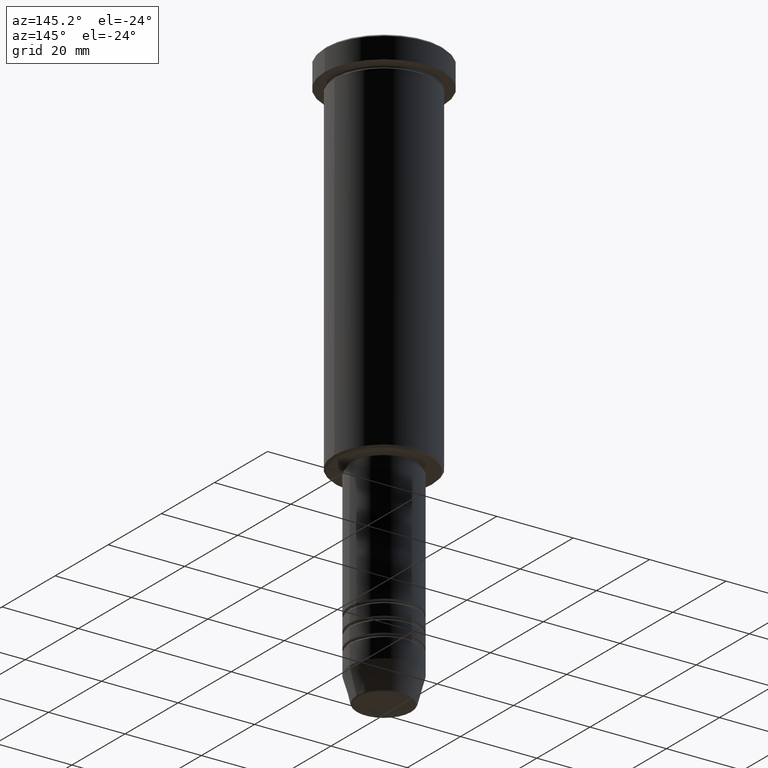
[diagram: clean part render]
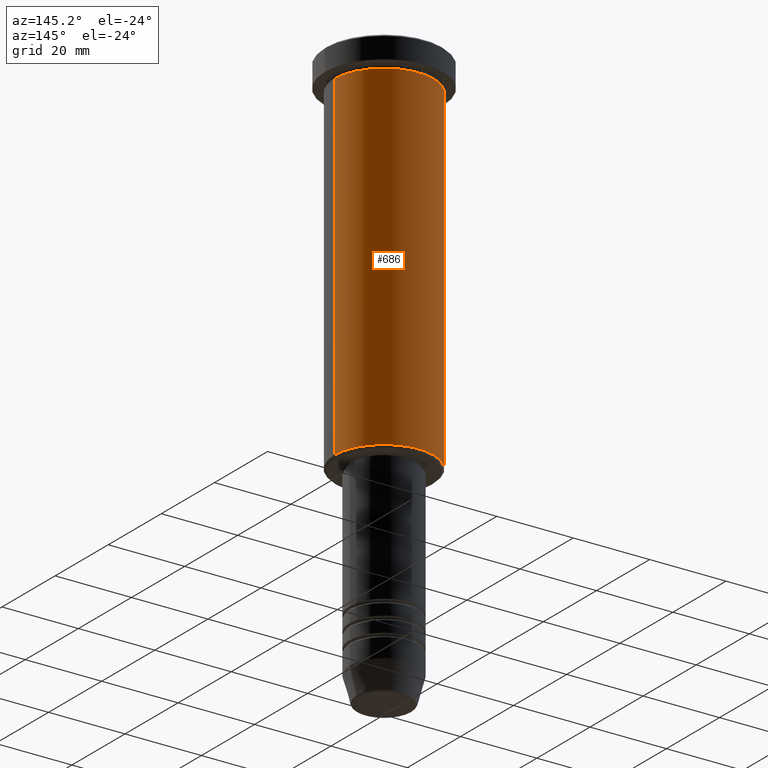
[diagram: same view with one face highlighted and labeled with its STEP entity id]
A machine part, auxiliary view. The second image highlights one B-rep face of the part: STEP entity #686.
In plain terms, the highlighted cylindrical surface (partial cylindrical patch) has radius 13 mm, axis along (-0, -0, 1).
Its self-contained STEP definition (entity closure, byte-faithful):
#49 = AXIS2_PLACEMENT_3D ( 'NONE', #558, #462, #275 ) ;
#59 = EDGE_CURVE ( 'NONE', #258, #229, #375, .T. ) ;
#61 = ORIENTED_EDGE ( 'NONE', *, *, #566, .T. ) ;
#71 = CARTESIAN_POINT ( 'NONE',  ( -13.00000000000000178, 1.592040838891559293E-15, -6.999999999999995559 ) ) ;
#73 = LINE ( 'NONE', #1172, #1012 ) ;
#145 = VERTEX_POINT ( 'NONE', #691 ) ;
#171 = EDGE_CURVE ( 'NONE', #229, #878, #721, .T. ) ;
#193 = CYLINDRICAL_SURFACE ( 'NONE', #49, 13.00000000000000178 ) ;
#196 = DIRECTION ( 'NONE',  ( 1.000000000000000000, 0.000000000000000000, 0.000000000000000000 ) ) ;
#229 = VERTEX_POINT ( 'NONE', #1057 ) ;
#246 = AXIS2_PLACEMENT_3D ( 'NONE', #1136, #967, #335 ) ;
#258 = VERTEX_POINT ( 'NONE', #594 ) ;
#275 = DIRECTION ( 'NONE',  ( 1.000000000000000000, 0.000000000000000000, 0.000000000000000000 ) ) ;
#303 = AXIS2_PLACEMENT_3D ( 'NONE', #419, #605, #196 ) ;
#335 = DIRECTION ( 'NONE',  ( -1.000000000000000000, 0.000000000000000000, 0.000000000000000000 ) ) ;
#359 = DIRECTION ( 'NONE',  ( -0.000000000000000000, -0.000000000000000000, 1.000000000000000000 ) ) ;
#375 = LINE ( 'NONE', #844, #813 ) ;
#419 = CARTESIAN_POINT ( 'NONE',  ( 0.000000000000000000, 0.000000000000000000, -6.999999999999995559 ) ) ;
#438 = ORIENTED_EDGE ( 'NONE', *, *, #59, .F. ) ;
#462 = DIRECTION ( 'NONE',  ( -0.000000000000000000, -0.000000000000000000, 1.000000000000000000 ) ) ;
#558 = CARTESIAN_POINT ( 'NONE',  ( 0.000000000000000000, 0.000000000000000000, 0.000000000000000000 ) ) ;
#566 = EDGE_CURVE ( 'NONE', #145, #878, #73, .T. ) ;
#594 = CARTESIAN_POINT ( 'NONE',  ( 13.00000000000000178, 0.000000000000000000, -95.50000000000001421 ) ) ;
#605 = DIRECTION ( 'NONE',  ( -0.000000000000000000, -0.000000000000000000, 1.000000000000000000 ) ) ;
#686 = ADVANCED_FACE ( 'NONE', ( #730 ), #193, .T. ) ;
#691 = CARTESIAN_POINT ( 'NONE',  ( -13.00000000000000178, 1.592040838891559293E-15, -95.50000000000001421 ) ) ;
#721 = CIRCLE ( 'NONE', #303, 13.00000000000000178 ) ;
#730 = FACE_OUTER_BOUND ( 'NONE', #909, .T. ) ;
#758 = ORIENTED_EDGE ( 'NONE', *, *, #171, .F. ) ;
#761 = CIRCLE ( 'NONE', #246, 13.00000000000000178 ) ;
#766 = EDGE_CURVE ( 'NONE', #258, #145, #761, .T. ) ;
#813 = VECTOR ( 'NONE', #1110, 1000.000000000000000 ) ;
#844 = CARTESIAN_POINT ( 'NONE',  ( 13.00000000000000178, 0.000000000000000000, 0.000000000000000000 ) ) ;
#878 = VERTEX_POINT ( 'NONE', #71 ) ;
#909 = EDGE_LOOP ( 'NONE', ( #1088, #61, #758, #438 ) ) ;
#967 = DIRECTION ( 'NONE',  ( -0.000000000000000000, -0.000000000000000000, 1.000000000000000000 ) ) ;
#1012 = VECTOR ( 'NONE', #359, 1000.000000000000000 ) ;
#1057 = CARTESIAN_POINT ( 'NONE',  ( 13.00000000000000178, 0.000000000000000000, -6.999999999999995559 ) ) ;
#1088 = ORIENTED_EDGE ( 'NONE', *, *, #766, .T. ) ;
#1110 = DIRECTION ( 'NONE',  ( -0.000000000000000000, -0.000000000000000000, 1.000000000000000000 ) ) ;
#1136 = CARTESIAN_POINT ( 'NONE',  ( 0.000000000000000000, 0.000000000000000000, -95.50000000000001421 ) ) ;
#1172 = CARTESIAN_POINT ( 'NONE',  ( -13.00000000000000178, 1.592040838891559293E-15, 0.000000000000000000 ) ) ;